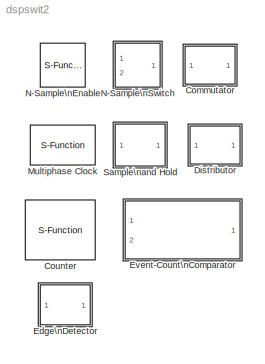
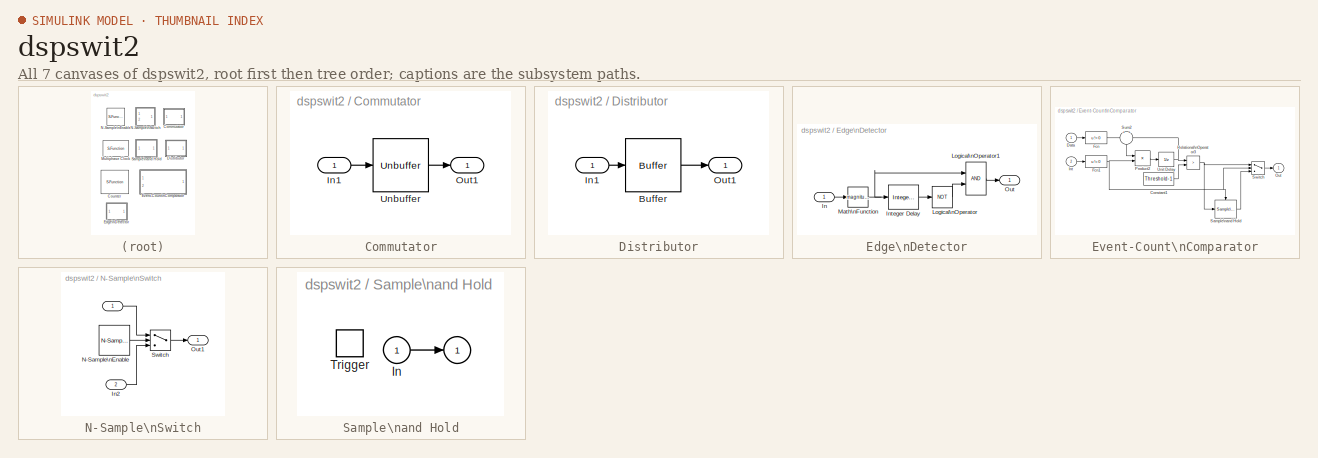
[diagram: thumbnail index - all 7 canvases of the model, root first then tree order]
MODEL dspswit2
KIND library
BLOCK [SubSystem] Commutator
  MaskDescription = Convert a vector into a sequence of scalars produced at a rate N times the input sample rate.
  MaskDisplay = plot(xc4,yc4,x,y,xs,ys);\n
  MaskHelp = web(dspbhelp);
  MaskIconFrame = on
  MaskIconOpaque = on
  MaskIconRotate = port
  MaskIconUnits = autoscale
  MaskInitialization = S=12; t=(0:S)/S*2*pi; a=0.05; xc=a*cos(t); yc=a*sin(t);\nxc4=[xc+.45 NaN xc+.35 NaN xc+.45 NaN xc+.8];\nyc4=[yc+.7 NaN yc+.5 NaN yc+.3 NaN yc+.5];\nx=[0 .1 NaN .1 .1 .2 .2 .1 NaN .2 .4 NaN .2 .3 NaN .2 .4 NaN .85 1 NaN .75 .525 NaN .595 .525 .55];\ny=[.5 .5 NaN .2 .8 .8 .2 .2 NaN .7 .7 NaN .5 .5 NaN .3 .3 NaN .5 .5 NaN .5 .7 NaN .7 .7 .61];\nxs=[xc(4:9) xc(9)+[-.03 0 -.01] ]*3.5+.8;\nys=[yc(4:9) y...<+28ch>
  MaskType = Commutator
  Ports = [1, 1, 0, 0, 0]
  ShowPortLabels = on
  TreatAsAtomicUnit = off
BLOCK [Inport] Commutator/In1
  Interpolate = on
  Port = 1
BLOCK [Outport] Commutator/Out1
  InitialOutput = 0
  OutputWhenDisabled = held
  Port = 1
BLOCK [Reference] Commutator/Unbuffer  REF=dspbuff2/Unbuffer
  Ports = [1, 1, 0, 0, 0]
  SourceBlock = dspbuff2/Unbuffer
  SourceType = Unbuffer
  ic = 0
  num_chans = 1
BLOCK [S-Function] Counter
  FunctionName = sdspcount
  MaskCallbackString = |dspblkcount|dspblkcount|||dspblkcount|||||
  MaskDescription = Count up or down based on input count events.  If the \"Count event\" is set to \"Free running\" the output updates at the specified sample time.
  MaskDisplay = port_label(p.in1,   p.i1,  p.i1s);\nport_label(p.in2,   p.i2,  p.i2s);\nport_label(p.out, p.o1, p.o1s);\nport_label(p.out, p.o2, p.o2s);   \ndisp(xy.direction)
  MaskEnableString = on,on,on,on,on,on,on,on,on,off,off
  MaskHelp = web(dspbhelp);
  MaskIconFrame = on
  MaskIconOpaque = on
  MaskIconRotate = none
  MaskIconUnits = autoscale
  MaskInitialization = [p,xy] = dspblkcount('icon');\n
  MaskPromptString = Count direction:|Count event:|Counter size:|Maximum count:|Initial count:|Output:|Hit value:|Reset input|Frame-based clock input|Samples per output frame|Sample time:
  MaskSelfModifiable = on
  MaskStyleString = popup(Up|Down),popup(Rising edge|Falling edge|Either edge|Non-zero sample|Free running),popup(8 bits|16 bits|32 bits|User defined),edit,edit,popup(Count|Hit|Count and Hit),edit,checkbox,checkbox,edit,edit
  MaskTunableValueString = on,off,off,on,on,off,on,off,off,on,off
  MaskType = Counter
  MaskValueString = Down|Rising edge|User defined|255|0|Count and Hit|32|on|off|1|1
  MaskVariables = Direction=@1;CountEvent=@2;CounterSize=@3;MaxCount=@4;InitialCount=@5;Output=@6;HitValue=@7;ResetInput=@8;Framebased=@9;SamplesPerFrame=@10;Ts=@11;
  MaskVisibilityString = on,on,on,on,on,on,on,on,on,on,on
  Parameters = Direction, CountEvent, CounterSize, MaxCount, InitialCount, Output, HitValue, ResetInput, Framebased, SamplesPerFrame, Ts
  PortCounts = []
  Ports = [2, 2, 0, 0, 0]
  SFunctionModules = ''
BLOCK [SubSystem] Distributor
  MaskCallbackString = |
  MaskDescription = Take scalar input samples and \"distribute\" them to N outputs (produced as a single vector), reducing the data rate by a factor of N.
  MaskDisplay = plot(1-xc4,yc4,1-x,y,1-xs,ys);\n
  MaskEnableString = on,on
  MaskHelp = web(dspbhelp);
  MaskIconFrame = on
  MaskIconOpaque = on
  MaskIconRotate = port
  MaskIconUnits = autoscale
  MaskInitialization = S=12; t=(0:S)/S*2*pi; a=0.05; xc=a*cos(t); yc=a*sin(t);\nxc4=[xc+.45 NaN xc+.35 NaN xc+.45 NaN xc+.8];\nyc4=[yc+.7 NaN yc+.5 NaN yc+.3 NaN yc+.5];\nx=[0 .1 NaN .1 .1 .2 .2 .1 NaN .2 .4 NaN .2 .3 NaN .2 .4 NaN .85 1 NaN .75 .525 NaN .595 .525 .55];\ny=[.5 .5 NaN .2 .8 .8 .2 .2 NaN .7 .7 NaN .5 .5 NaN .3 .3 NaN .5 .5 NaN .5 .7 NaN .7 .7 .61];\nxs=[xc(4:9) xc(9)+[-.03 0 -.01] ]*3.5+.8;\nys=[yc(4:9) y...<+28ch>
  MaskPromptString = Output vector width, N:|Initial conditions:
  MaskStyleString = edit,edit
  MaskTunableValueString = off,off
  MaskType = Distributor
  MaskValueString = 64|0
  MaskVariables = N=@1;ic=@2;
  MaskVisibilityString = on,on
  Ports = [1, 1, 0, 0, 0]
  ShowPortLabels = on
  TreatAsAtomicUnit = off
BLOCK [Reference] Distributor/Buffer  REF=dspbuff2/Buffer
  N = N
  Ports = [1, 1, 0, 0, 0]
  SourceBlock = dspbuff2/Buffer
  SourceType = Buffer
  V = 0
  ic = ic
BLOCK [Inport] Distributor/In1
  Interpolate = on
  Port = 1
BLOCK [Outport] Distributor/Out1
  InitialOutput = 0
  OutputWhenDisabled = held
  Port = 1
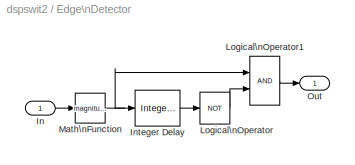
BLOCK [SubSystem] Edge\nDetector
  MaskCallbackString = dspblkedetect|
  MaskDescription = Output a unity amplitude pulse for one time step in response to a transition from zero to a non-zero value.
  MaskDisplay = plot(x,y)
  MaskEnableString = on,off
  MaskHelp = web(dspbhelp);\n
  MaskIconFrame = on
  MaskIconOpaque = on
  MaskIconRotate = none
  MaskIconUnits = normalized
  MaskInitialization = [x,y] = dspblkedetect('icon');\ndspblkedetect('update');
  MaskPromptString = Frame-based inputs|Number of channels:
  MaskSelfModifiable = on
  MaskStyleString = checkbox,edit
  MaskTunableValueString = on,on
  MaskType = Edge Detector
  MaskValueString = off|1
  MaskVariables = frame=@1;NumChans=@2;
  MaskVisibilityString = on,on
  Ports = [1, 1, 0, 0, 0]
  ShowPortLabels = on
  TreatAsAtomicUnit = off
BLOCK [Inport] Edge\nDetector/In
  Interpolate = on
  Port = 1
BLOCK [Reference] Edge\nDetector/Integer Delay  REF=dspbdsp2/Integer Delay
  Ports = [1, 1, 0, 0, 0]
  SourceBlock = dspbdsp2/Integer Delay
  SourceType = Integer Delay
  delay = 1
  df = on
  frame = off
  ic = 1
  numChans = NumChans
BLOCK [Logic] Edge\nDetector/Logical\nOperator
  Inputs = 1
  Operator = NOT
  Ports = [1, 1, 0, 0, 0]
BLOCK [Logic] Edge\nDetector/Logical\nOperator1
  Inputs = 2
  Operator = AND
  Ports = [2, 1, 0, 0, 0]
BLOCK [Math] Edge\nDetector/Math\nFunction
  Operator = magnitude^2
  OutputSignalType = auto
  Ports = [1, 1, 0, 0, 0]
BLOCK [Outport] Edge\nDetector/Out
  InitialOutput = 0
  OutputWhenDisabled = held
  Port = 1
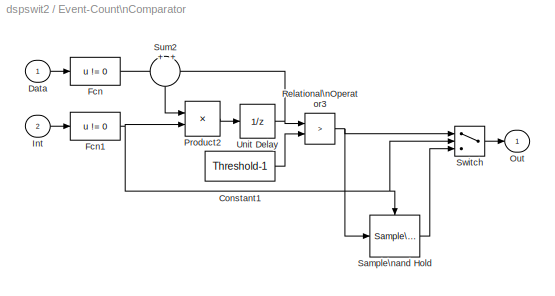
BLOCK [SubSystem] Event-Count\nComparator
  MaskDescription = Output is true if the number of non-zero inputs over time equals or exceeds the Event threshold during the enable interval.   A non-zero input on the interval port (Int) enables the block to begin counting and resets the output.  Inputs must be discrete-time.
  MaskDisplay = disp('Event-Count\\nComparator')\ntext(0.95,0.1,['Thresh:' s],'horiz','right')
  MaskEnableString = on
  MaskHelp = web(dspbhelp);
  MaskIconFrame = on
  MaskIconOpaque = off
  MaskIconRotate = none
  MaskIconUnits = normalized
  MaskInitialization = if isempty(Threshold), s=&1; else s=num2str(Threshold); end\n
  MaskPromptString = Event threshold:
  MaskStyleString = edit
  MaskTunableValueString = off
  MaskType = Event-Count Comparator
  MaskValueString = 10
  MaskVariables = Threshold=@1;
  MaskVisibilityString = on
  Ports = [2, 1, 0, 0, 0]
  ShowPortLabels = on
  TreatAsAtomicUnit = off
BLOCK [Constant] Event-Count\nComparator/Constant1
  Value = Threshold-1
  VectorParams1D = on
BLOCK [Inport] Event-Count\nComparator/Data
  Interpolate = on
  Port = 1
BLOCK [Fcn] Event-Count\nComparator/Fcn
  Expr = u != 0
BLOCK [Fcn] Event-Count\nComparator/Fcn1
  Expr = u != 0
BLOCK [Inport] Event-Count\nComparator/Int
  Interpolate = on
  Port = 2
BLOCK [Outport] Event-Count\nComparator/Out
  InitialOutput = []
  OutputWhenDisabled = held
  Port = 1
BLOCK [Product] Event-Count\nComparator/Product2
  Inputs = 2
  Multiplication = Element-wise(.*)
  Ports = [2, 1, 0, 0, 0]
  SaturateOnIntegerOverflow = on
BLOCK [RelationalOperator] Event-Count\nComparator/Relational\nOperator3
  Operator = >
BLOCK [Reference] Event-Count\nComparator/Sample\nand Hold  REF=dspswit2/Sample\nand Hold
  Ports = [1, 1, 0, 1, 0]
  SourceBlock = dspswit2/Sample\nand Hold
  SourceType = Sample and Hold
  initCond = 0
  trig = Falling edge
BLOCK [Sum] Event-Count\nComparator/Sum2
  IconShape = round
  Inputs = +|+
  Ports = [2, 1, 0, 0, 0]
  SaturateOnIntegerOverflow = on
BLOCK [Switch] Event-Count\nComparator/Switch
  Threshold = 1
BLOCK [UnitDelay] Event-Count\nComparator/Unit Delay
  SampleTime = -1
  X0 = 0
BLOCK [S-Function] Multiphase Clock
  FunctionName = sdspmpclk
  MaskCallbackString = ||||
  MaskDescription = Generate a vector of N binary signals representing the N clock phases.
  MaskDisplay = disp(s)
  MaskEnableString = on,on,on,on,on
  MaskHelp = web(dspbhelp);\n
  MaskIconFrame = on
  MaskIconOpaque = on
  MaskIconRotate = none
  MaskIconUnits = autoscale
  MaskInitialization = if isempty(NumPhases), s=&2;\nelse s=num2str(NumPhases);\nend\ns=[s '-Phase\\nClock'];\n
  MaskPromptString = Clock frequency (Hz):|Number of phases, N:|Starting phase (1 to N):|Number of phase intervals over which clock is active (1 to N-1):|Active level (polarity):
  MaskStyleString = edit,edit,edit,edit,popup(High (1)|Low (0))
  MaskTunableValueString = on,off,on,on,on
  MaskType = Multiphase Clock
  MaskValueString = 1|4|1|3|High (1)
  MaskVariables = ClkFreq=@1;NumPhases=@2;StartPhase=@3;DutyCycle=@4;ActiveLevel=@5;
  MaskVisibilityString = on,on,on,on,on
  Parameters = ClkFreq, NumPhases, ActiveLevel, DutyCycle, StartPhase
  PortCounts = []
  Ports = [0, 1, 0, 0, 0]
  SFunctionModules = ''
BLOCK [S-Function] N-Sample\nEnable
  FunctionName = sdspnsamp
  MaskCallbackString = ||dspblknsample|dspblknsample|
  MaskDescription = Transition from inactive to active after the first N samples.
  MaskDisplay = plot(x,y);\ntext(1, 0.05, s,'horiz','right','vert','base');\nport_label(p.side,p.port,p.label);
  MaskEnableString = on,on,on,off,on
  MaskHelp = web(dspbhelp);
  MaskIconFrame = on
  MaskIconOpaque = on
  MaskIconRotate = port
  MaskIconUnits = normalized
  MaskInitialization = [s,x,y, p] = dspblknsample('icon', N, &1);\nTriggerTypeo = dspblknsample('update', TriggerType);\n\n\n
  MaskPromptString = Trigger count, N:|Active level:|Reset input|Trigger type:|Sample time:
  MaskSelfModifiable = on
  MaskStyleString = edit,popup(High (1)|Low (0)),checkbox,popup(rising|falling|either),edit
  MaskTunableValueString = on,on,off,on,off
  MaskType = N-Sample Enable
  MaskValueString = 8|Low (0)|off|rising|1
  MaskVariables = N=@1;ActiveLevel=@2;reset=@3;TriggerType=@4;Ts=@5;
  MaskVisibilityString = on,on,on,on,on
  Parameters = TriggerTypeo, N, Ts, ActiveLevel
  PortCounts = []
  Ports = [0, 1, 0, 0, 0]
  SFunctionModules = ''
BLOCK [SubSystem] N-Sample\nSwitch
  MaskCallbackString = |dspblknswit||
  MaskDescription = Output N samples from the top port.  Thereafter, output samples from the bottom port.
  MaskDisplay = plot(x,y);\ntext(1, 0.05, s,'horiz','right','vert','base');\n\n
  MaskEnableString = on,on,off,on
  MaskHelp = web(dspbhelp);
  MaskIconFrame = on
  MaskIconOpaque = off
  MaskIconRotate = none
  MaskIconUnits = normalized
  MaskInitialization = [s, x,y] = dspblknswit('icon',N,&1);\ndspblknswit('update');
  MaskPromptString = Switch count, N:|Reset input|Trigger type:|Sample time:
  MaskSelfModifiable = on
  MaskStyleString = edit,checkbox,popup(rising|falling|either),edit
  MaskTunableValueString = on,off,on,off
  MaskType = N-Sample Switch
  MaskValueString = 8|off|rising|0.1
  MaskVariables = N=@1;reset=@2;TriggerType=@3;Ts=@4;
  MaskVisibilityString = on,on,on,on
  Ports = [2, 1, 0, 0, 0]
  ShowPortLabels = on
  TreatAsAtomicUnit = off
BLOCK [Inport] N-Sample\nSwitch/ 
  Interpolate = on
  Port = 1
BLOCK [Inport] N-Sample\nSwitch/In2
  Interpolate = on
  Port = 2
BLOCK [Reference] N-Sample\nSwitch/N-Sample\nEnable  REF=dspswit2/N-Sample\nEnable
  ActiveLevel = Low (0)
  N = N
  Ports = [0, 1, 0, 0, 0]
  SourceBlock = dspswit2/N-Sample\nEnable
  SourceType = N-Sample Enable
  TriggerType = rising
  Ts = Ts
  reset = off
BLOCK [Outport] N-Sample\nSwitch/Out1
  InitialOutput = []
  OutputWhenDisabled = held
  Port = 1
BLOCK [Switch] N-Sample\nSwitch/Switch
  Threshold = 1
BLOCK [SubSystem] Sample\nand Hold
  MaskCallbackString = |
  MaskDescription = Sample and hold input signal.
  MaskDisplay = disp('S/H')
  MaskEnableString = on,on
  MaskHelp = web(dspbhelp);
  MaskIconFrame = on
  MaskIconOpaque = off
  MaskIconRotate = none
  MaskIconUnits = autoscale
  MaskInitialization = switch trig\ncase 1, s='rising';\ncase 2, s='falling';\ncase 3, s='either';\nend\nset_param([gcb '/Trigger'],'triggertype',s);\n
  MaskPromptString = Trigger type:|Initial condition:
  MaskSelfModifiable = on
  MaskStyleString = popup(Rising edge|Falling edge|Either edge),edit
  MaskTunableValueString = off,off
  MaskType = Sample and Hold
  MaskValueString = Rising edge|0
  MaskVariables = trig=@1;initCond=@2;
  MaskVisibilityString = on,on
  Ports = [1, 1, 0, 1, 0]
  ShowPortLabels = on
  TreatAsAtomicUnit = on
BLOCK [Outport] Sample\nand Hold/ 
  InitialOutput = initCond
  OutputWhenDisabled = held
  Port = 1
BLOCK [Inport] Sample\nand Hold/In
  Interpolate = on
  Port = 1
BLOCK [TriggerPort] Sample\nand Hold/Trigger
  OutputDataType = auto
  Ports = [0, 0, 0, 0, 0]
  ShowOutputPort = off
  TriggerType = rising
LINE Commutator/In1:1 -> Commutator/Unbuffer:1
LINE Commutator/Unbuffer:1 -> Commutator/Out1:1
LINE Distributor/Buffer:1 -> Distributor/Out1:1
LINE Distributor/In1:1 -> Distributor/Buffer:1
LINE Edge\nDetector/In:1 -> Edge\nDetector/Math\nFunction:1
LINE Edge\nDetector/Integer Delay:1 -> Edge\nDetector/Logical\nOperator:1
LINE Edge\nDetector/Logical\nOperator1:1 -> Edge\nDetector/Out:1
LINE Edge\nDetector/Logical\nOperator:1 -> Edge\nDetector/Logical\nOperator1:2
NET Edge\nDetector/Math\nFunction:1 -> Edge\nDetector/Integer Delay:1, Edge\nDetector/Logical\nOperator1:1
LINE Event-Count\nComparator/Constant1:1 -> Event-Count\nComparator/Relational\nOperator3:2
LINE Event-Count\nComparator/Data:1 -> Event-Count\nComparator/Fcn:1
NET Event-Count\nComparator/Fcn1:1 -> Event-Count\nComparator/Product2:2, Event-Count\nComparator/Sample\nand Hold:trigger, Event-Count\nComparator/Switch:2
LINE Event-Count\nComparator/Fcn:1 -> Event-Count\nComparator/Sum2:1
LINE Event-Count\nComparator/Int:1 -> Event-Count\nComparator/Fcn1:1
LINE Event-Count\nComparator/Product2:1 -> Event-Count\nComparator/Unit Delay:1
NET Event-Count\nComparator/Relational\nOperator3:1 -> Event-Count\nComparator/Sample\nand Hold:1, Event-Count\nComparator/Switch:1
LINE Event-Count\nComparator/Sample\nand Hold:1 -> Event-Count\nComparator/Switch:3
LINE Event-Count\nComparator/Sum2:1 -> Event-Count\nComparator/Product2:1
LINE Event-Count\nComparator/Switch:1 -> Event-Count\nComparator/Out:1
NET Event-Count\nComparator/Unit Delay:1 -> Event-Count\nComparator/Relational\nOperator3:1, Event-Count\nComparator/Sum2:2
LINE N-Sample\nSwitch/ :1 -> N-Sample\nSwitch/Switch:1
LINE N-Sample\nSwitch/In2:1 -> N-Sample\nSwitch/Switch:3
LINE N-Sample\nSwitch/N-Sample\nEnable:1 -> N-Sample\nSwitch/Switch:2
LINE N-Sample\nSwitch/Switch:1 -> N-Sample\nSwitch/Out1:1
LINE Sample\nand Hold/In:1 -> Sample\nand Hold/ :1
note: NET lines group one-source signal fan-out (src -> all destinations, sorted); 1:1 wires keep LINE
